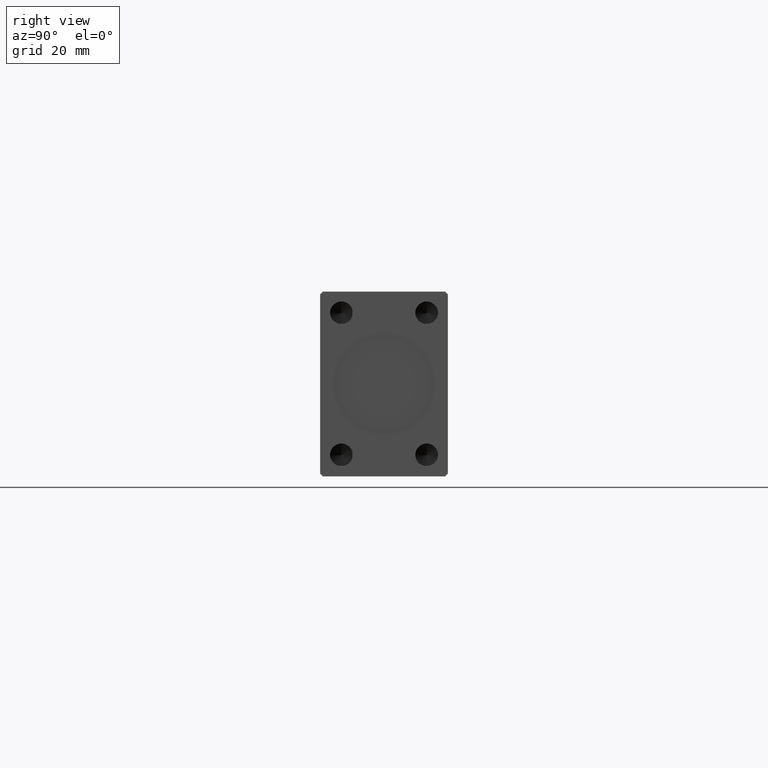
[diagram: clean part render]
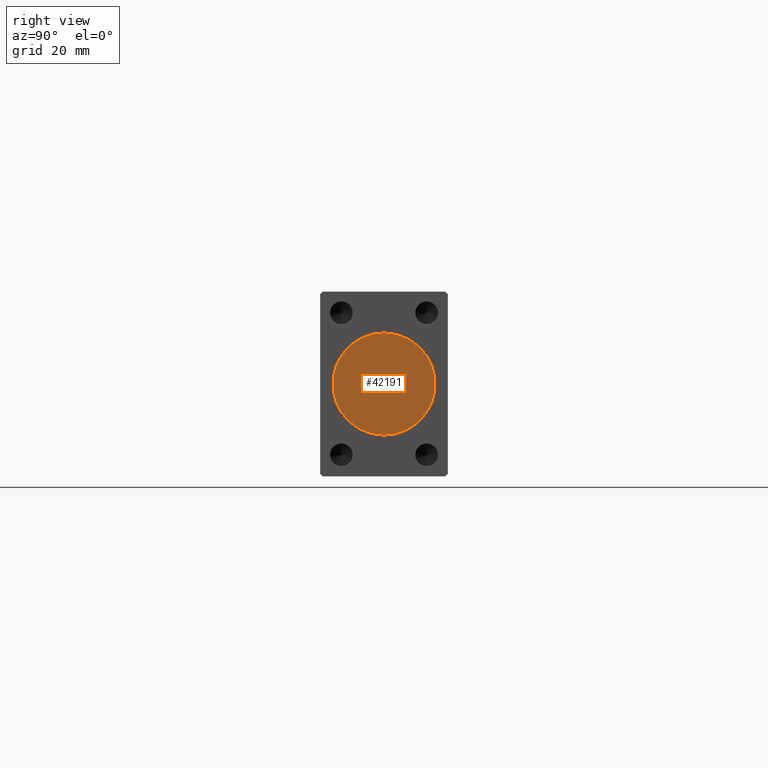
[diagram: same view with one face highlighted and labeled with its STEP entity id]
A machine part, right view. The second image highlights one B-rep face of the part: STEP entity #42191.
In plain terms, the highlighted planar face has unit normal (1, 0, 0).
Its self-contained STEP definition (entity closure, byte-faithful):
#2653 = EDGE_CURVE ( 'NONE', #30695, #29794, #10180, .T. ) ;
#4067 = CARTESIAN_POINT ( 'NONE',  ( 237.7999999999999829, 0.000000000000000000, 0.000000000000000000 ) ) ;
#5177 = AXIS2_PLACEMENT_3D ( 'NONE', #4067, #11199, #20596 ) ;
#9752 = FACE_OUTER_BOUND ( 'NONE', #15431, .T. ) ;
#10180 = CIRCLE ( 'NONE', #5177, 18.00000000000000000 ) ;
#11199 = DIRECTION ( 'NONE',  ( 1.000000000000000000, 0.000000000000000000, 0.000000000000000000 ) ) ;
#12040 = ORIENTED_EDGE ( 'NONE', *, *, #2653, .T. ) ;
#15431 = EDGE_LOOP ( 'NONE', ( #12040, #26622 ) ) ;
#16218 = PLANE ( 'NONE',  #31562 ) ;
#16440 = CARTESIAN_POINT ( 'NONE',  ( 237.7999999999999829, 0.000000000000000000, 0.000000000000000000 ) ) ;
#17131 = CARTESIAN_POINT ( 'NONE',  ( 237.7999999999999829, 0.000000000000000000, 0.000000000000000000 ) ) ;
#20143 = AXIS2_PLACEMENT_3D ( 'NONE', #17131, #28041, #24691 ) ;
#20596 = DIRECTION ( 'NONE',  ( 0.000000000000000000, 0.000000000000000000, -1.000000000000000000 ) ) ;
#23582 = DIRECTION ( 'NONE',  ( 1.000000000000000000, 0.000000000000000000, 0.000000000000000000 ) ) ;
#24691 = DIRECTION ( 'NONE',  ( 0.000000000000000000, 0.000000000000000000, -1.000000000000000000 ) ) ;
#26622 = ORIENTED_EDGE ( 'NONE', *, *, #40363, .T. ) ;
#28041 = DIRECTION ( 'NONE',  ( 1.000000000000000000, 0.000000000000000000, 0.000000000000000000 ) ) ;
#29794 = VERTEX_POINT ( 'NONE', #36234 ) ;
#30695 = VERTEX_POINT ( 'NONE', #39200 ) ;
#31562 = AXIS2_PLACEMENT_3D ( 'NONE', #16440, #23582, #40306 ) ;
#36234 = CARTESIAN_POINT ( 'NONE',  ( 237.7999999999999829, 2.204364238465235428E-15, 18.00000000000000000 ) ) ;
#39200 = CARTESIAN_POINT ( 'NONE',  ( 237.7999999999999829, 0.000000000000000000, -18.00000000000000000 ) ) ;
#40306 = DIRECTION ( 'NONE',  ( 0.000000000000000000, 0.000000000000000000, -1.000000000000000000 ) ) ;
#40363 = EDGE_CURVE ( 'NONE', #29794, #30695, #41509, .T. ) ;
#41509 = CIRCLE ( 'NONE', #20143, 18.00000000000000000 ) ;
#42191 = ADVANCED_FACE ( 'NONE', ( #9752 ), #16218, .T. ) ;